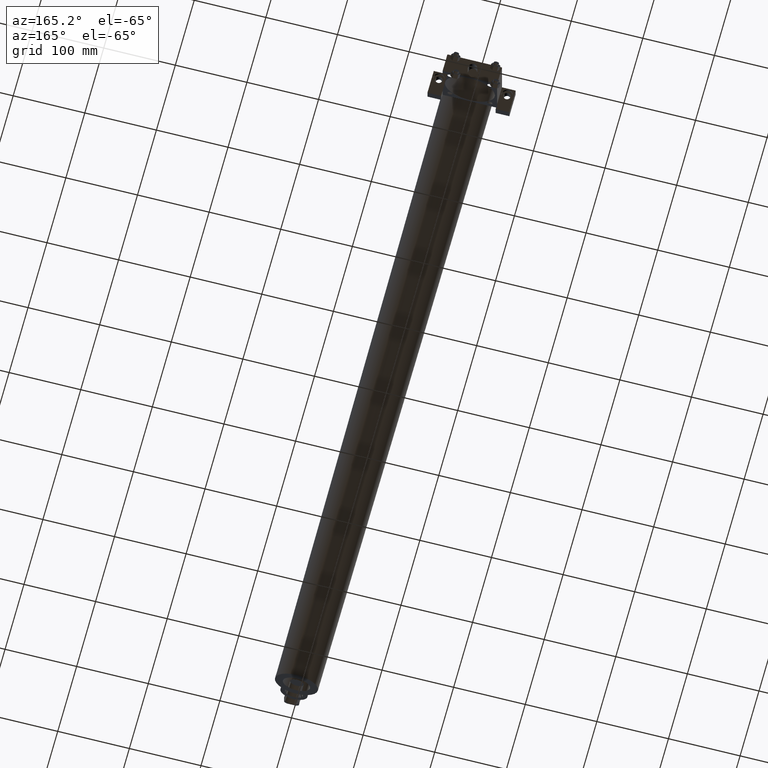
[diagram: clean part render]
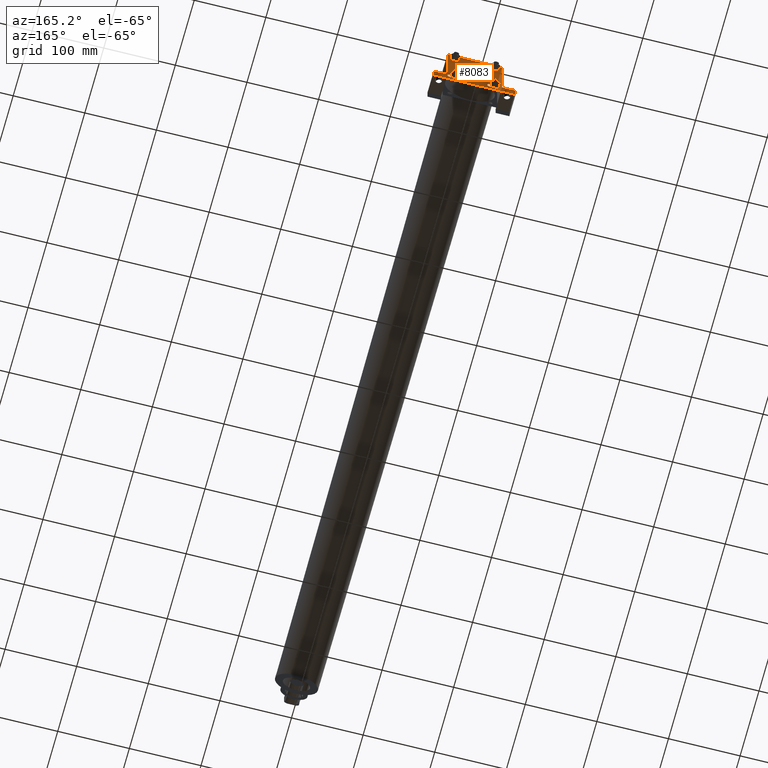
[diagram: same view with one face highlighted and labeled with its STEP entity id]
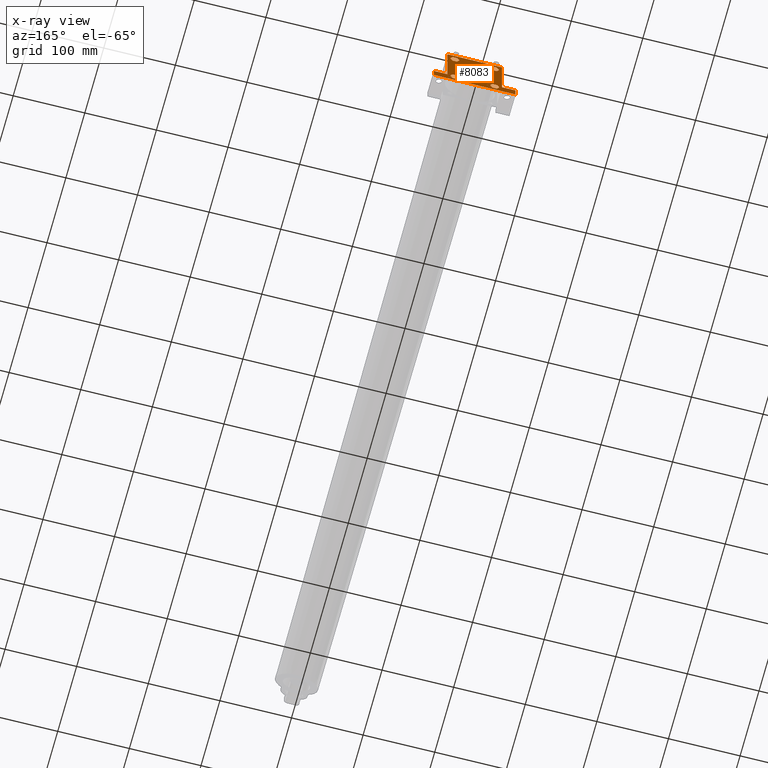
[diagram: x-ray of the same camera — body ghosted, the highlighted face saturated]
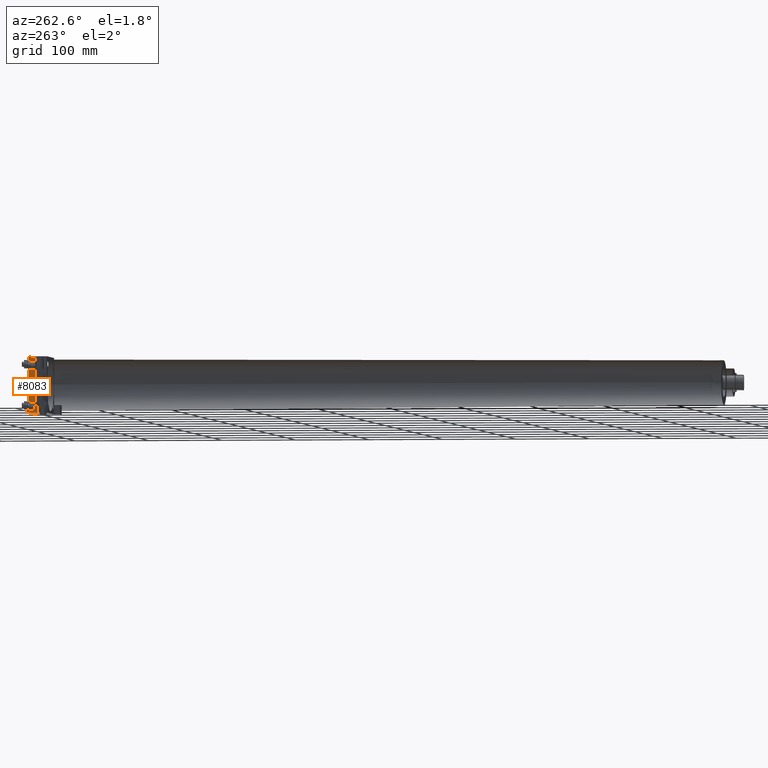
[diagram: same view with one face highlighted and labeled with its STEP entity id]
A machine part, auxiliary view. The second image highlights one B-rep face of the part: STEP entity #8083.
The next image is the same camera in x-ray: the body ghosted, the highlighted face saturated — about 0% of this face is hidden behind the body in this view.
A second angle (auxiliary view) of the same face is appended — the face is thin or edge-on in the first view.
In plain terms, the highlighted planar face has unit normal (0, -1, 0).
Its self-contained STEP definition (entity closure, byte-faithful):
#1557=VERTEX_POINT('',#1558);
#1558=CARTESIAN_POINT('',(-2.460509347E+001,9.683750000E+002,-2.225675426E+001));
#1559=EDGE_CURVE('',#1564,#1557,#1560,.T.);
#1560=LINE('',#1561,#1562);
#1561=CARTESIAN_POINT('',(-2.139719677E+001,9.683750000E+002,-2.781300000E+001));
#1562=VECTOR('',#1563,1.0E+000);
#1563=DIRECTION('',(-5.01129111258307E-001,0.0E+000,
   8.65372528943148E-001));
#1564=VERTEX_POINT('',#1565);
#1565=CARTESIAN_POINT('',(-2.139719677E+001,9.683750000E+002,-2.781300000E+001));
#1589=EDGE_CURVE('',#1594,#1564,#1590,.T.);
#1590=LINE('',#1591,#1592);
#1591=CARTESIAN_POINT('',(-2.460509347E+001,9.683750000E+002,-3.336924574E+001));
#1592=VECTOR('',#1593,1.0E+000);
#1593=DIRECTION('',(5.01129111258308E-001,0.0E+000,8.65372528943147E-001));
#1594=VERTEX_POINT('',#1595);
#1595=CARTESIAN_POINT('',(-2.460509347E+001,9.683750000E+002,-3.336924574E+001));
#1619=EDGE_CURVE('',#1624,#1594,#1620,.T.);
#1620=LINE('',#1621,#1622);
#1621=CARTESIAN_POINT('',(-3.102090653E+001,9.683750000E+002,-3.336924574E+001));
#1622=VECTOR('',#1623,1.0E+000);
#1623=DIRECTION('',(1.0E+000,0.0E+000,0.0E+000));
#1624=VERTEX_POINT('',#1625);
#1625=CARTESIAN_POINT('',(-3.102090653E+001,9.683750000E+002,-3.336924574E+001));
#1649=EDGE_CURVE('',#1654,#1624,#1650,.T.);
#1650=LINE('',#1651,#1652);
#1651=CARTESIAN_POINT('',(-3.422880323E+001,9.683750000E+002,-2.781300000E+001));
#1652=VECTOR('',#1653,1.0E+000);
#1653=DIRECTION('',(5.01129111258307E-001,0.0E+000,
   -8.65372528943148E-001));
#1654=VERTEX_POINT('',#1655);
#1655=CARTESIAN_POINT('',(-3.422880323E+001,9.683750000E+002,-2.781300000E+001));
#1679=EDGE_CURVE('',#1684,#1654,#1680,.T.);
#1680=LINE('',#1681,#1682);
#1681=CARTESIAN_POINT('',(-3.102090653E+001,9.683750000E+002,-2.225675426E+001));
#1682=VECTOR('',#1683,1.0E+000);
#1683=DIRECTION('',(-5.01129111258308E-001,0.0E+000,
   -8.65372528943147E-001));
#1684=VERTEX_POINT('',#1685);
#1685=CARTESIAN_POINT('',(-3.102090653E+001,9.683750000E+002,-2.225675426E+001));
#1707=EDGE_CURVE('',#1557,#1684,#1708,.T.);
#1708=LINE('',#1709,#1710);
#1709=CARTESIAN_POINT('',(-2.460509347E+001,9.683750000E+002,-2.225675426E+001));
#1710=VECTOR('',#1711,1.0E+000);
#1711=DIRECTION('',(-1.0E+000,0.0E+000,0.0E+000));
#1788=VERTEX_POINT('',#1789);
#1789=CARTESIAN_POINT('',(-3.102090653E+001,9.683750000E+002,2.225675426E+001));
#1790=EDGE_CURVE('',#1795,#1788,#1791,.T.);
#1791=LINE('',#1792,#1793);
#1792=CARTESIAN_POINT('',(-3.422880323E+001,9.683750000E+002,2.781300000E+001));
#1793=VECTOR('',#1794,1.0E+000);
#1794=DIRECTION('',(5.01129111258307E-001,0.0E+000,
   -8.65372528943148E-001));
#1795=VERTEX_POINT('',#1796);
#1796=CARTESIAN_POINT('',(-3.422880323E+001,9.683750000E+002,2.781300000E+001));
#1820=EDGE_CURVE('',#1825,#1795,#1821,.T.);
#1821=LINE('',#1822,#1823);
#1822=CARTESIAN_POINT('',(-3.102090653E+001,9.683750000E+002,3.336924574E+001));
#1823=VECTOR('',#1824,1.0E+000);
#1824=DIRECTION('',(-5.01129111258308E-001,0.0E+000,
   -8.65372528943147E-001));
#1825=VERTEX_POINT('',#1826);
#1826=CARTESIAN_POINT('',(-3.102090653E+001,9.683750000E+002,3.336924574E+001));
#1850=EDGE_CURVE('',#1855,#1825,#1851,.T.);
#1851=LINE('',#1852,#1853);
#1852=CARTESIAN_POINT('',(-2.460509347E+001,9.683750000E+002,3.336924574E+001));
#1853=VECTOR('',#1854,1.0E+000);
#1854=DIRECTION('',(-1.0E+000,0.0E+000,0.0E+000));
#1855=VERTEX_POINT('',#1856);
#1856=CARTESIAN_POINT('',(-2.460509347E+001,9.683750000E+002,3.336924574E+001));
#1880=EDGE_CURVE('',#1885,#1855,#1881,.T.);
#1881=LINE('',#1882,#1883);
#1882=CARTESIAN_POINT('',(-2.139719677E+001,9.683750000E+002,2.781300000E+001));
#1883=VECTOR('',#1884,1.0E+000);
#1884=DIRECTION('',(-5.01129111258307E-001,0.0E+000,
   8.65372528943148E-001));
#1885=VERTEX_POINT('',#1886);
#1886=CARTESIAN_POINT('',(-2.139719677E+001,9.683750000E+002,2.781300000E+001));
#1910=EDGE_CURVE('',#1915,#1885,#1911,.T.);
#1911=LINE('',#1912,#1913);
#1912=CARTESIAN_POINT('',(-2.460509347E+001,9.683750000E+002,2.225675426E+001));
#1913=VECTOR('',#1914,1.0E+000);
#1914=DIRECTION('',(5.01129111258308E-001,0.0E+000,8.65372528943147E-001));
#1915=VERTEX_POINT('',#1916);
#1916=CARTESIAN_POINT('',(-2.460509347E+001,9.683750000E+002,2.225675426E+001));
#1938=EDGE_CURVE('',#1788,#1915,#1939,.T.);
#1939=LINE('',#1940,#1941);
#1940=CARTESIAN_POINT('',(-3.102090653E+001,9.683750000E+002,2.225675426E+001));
#1941=VECTOR('',#1942,1.0E+000);
#1942=DIRECTION('',(1.0E+000,0.0E+000,0.0E+000));
#2019=VERTEX_POINT('',#2020);
#2020=CARTESIAN_POINT('',(2.460509347E+001,9.683750000E+002,2.225675426E+001));
#2021=EDGE_CURVE('',#2026,#2019,#2022,.T.);
#2022=LINE('',#2023,#2024);
#2023=CARTESIAN_POINT('',(2.139719677E+001,9.683750000E+002,2.781300000E+001));
#2024=VECTOR('',#2025,1.0E+000);
#2025=DIRECTION('',(5.01129111258307E-001,0.0E+000,
   -8.65372528943148E-001));
#2026=VERTEX_POINT('',#2027);
#2027=CARTESIAN_POINT('',(2.139719677E+001,9.683750000E+002,2.781300000E+001));
#2051=EDGE_CURVE('',#2056,#2026,#2052,.T.);
#2052=LINE('',#2053,#2054);
#2053=CARTESIAN_POINT('',(2.460509347E+001,9.683750000E+002,3.336924574E+001));
#2054=VECTOR('',#2055,1.0E+000);
#2055=DIRECTION('',(-5.01129111258308E-001,0.0E+000,
   -8.65372528943147E-001));
#2056=VERTEX_POINT('',#2057);
#2057=CARTESIAN_POINT('',(2.460509347E+001,9.683750000E+002,3.336924574E+001));
#2081=EDGE_CURVE('',#2086,#2056,#2082,.T.);
#2082=LINE('',#2083,#2084);
#2083=CARTESIAN_POINT('',(3.102090653E+001,9.683750000E+002,3.336924574E+001));
#2084=VECTOR('',#2085,1.0E+000);
#2085=DIRECTION('',(-1.0E+000,0.0E+000,0.0E+000));
#2086=VERTEX_POINT('',#2087);
#2087=CARTESIAN_POINT('',(3.102090653E+001,9.683750000E+002,3.336924574E+001));
#2111=EDGE_CURVE('',#2116,#2086,#2112,.T.);
#2112=LINE('',#2113,#2114);
#2113=CARTESIAN_POINT('',(3.422880323E+001,9.683750000E+002,2.781300000E+001));
#2114=VECTOR('',#2115,1.0E+000);
#2115=DIRECTION('',(-5.01129111258307E-001,0.0E+000,
   8.65372528943148E-001));
#2116=VERTEX_POINT('',#2117);
#2117=CARTESIAN_POINT('',(3.422880323E+001,9.683750000E+002,2.781300000E+001));
#2141=EDGE_CURVE('',#2146,#2116,#2142,.T.);
#2142=LINE('',#2143,#2144);
#2143=CARTESIAN_POINT('',(3.102090653E+001,9.683750000E+002,2.225675426E+001));
#2144=VECTOR('',#2145,1.0E+000);
#2145=DIRECTION('',(5.01129111258308E-001,0.0E+000,8.65372528943147E-001));
#2146=VERTEX_POINT('',#2147);
#2147=CARTESIAN_POINT('',(3.102090653E+001,9.683750000E+002,2.225675426E+001));
#2169=EDGE_CURVE('',#2019,#2146,#2170,.T.);
#2170=LINE('',#2171,#2172);
#2171=CARTESIAN_POINT('',(2.460509347E+001,9.683750000E+002,2.225675426E+001));
#2172=VECTOR('',#2173,1.0E+000);
#2173=DIRECTION('',(1.0E+000,0.0E+000,0.0E+000));
#2250=VERTEX_POINT('',#2251);
#2251=CARTESIAN_POINT('',(3.102090653E+001,9.683750000E+002,-2.225675426E+001));
#2252=EDGE_CURVE('',#2257,#2250,#2253,.T.);
#2253=LINE('',#2254,#2255);
#2254=CARTESIAN_POINT('',(3.422880323E+001,9.683750000E+002,-2.781300000E+001));
#2255=VECTOR('',#2256,1.0E+000);
#2256=DIRECTION('',(-5.01129111258307E-001,0.0E+000,
   8.65372528943148E-001));
#2257=VERTEX_POINT('',#2258);
#2258=CARTESIAN_POINT('',(3.422880323E+001,9.683750000E+002,-2.781300000E+001));
#2282=EDGE_CURVE('',#2287,#2257,#2283,.T.);
#2283=LINE('',#2284,#2285);
#2284=CARTESIAN_POINT('',(3.102090653E+001,9.683750000E+002,-3.336924574E+001));
#2285=VECTOR('',#2286,1.0E+000);
#2286=DIRECTION('',(5.01129111258308E-001,0.0E+000,8.65372528943147E-001));
#2287=VERTEX_POINT('',#2288);
#2288=CARTESIAN_POINT('',(3.102090653E+001,9.683750000E+002,-3.336924574E+001));
#2312=EDGE_CURVE('',#2317,#2287,#2313,.T.);
#2313=LINE('',#2314,#2315);
#2314=CARTESIAN_POINT('',(2.460509347E+001,9.683750000E+002,-3.336924574E+001));
#2315=VECTOR('',#2316,1.0E+000);
#2316=DIRECTION('',(1.0E+000,0.0E+000,0.0E+000));
#2317=VERTEX_POINT('',#2318);
#2318=CARTESIAN_POINT('',(2.460509347E+001,9.683750000E+002,-3.336924574E+001));
#2342=EDGE_CURVE('',#2347,#2317,#2343,.T.);
#2343=LINE('',#2344,#2345);
#2344=CARTESIAN_POINT('',(2.139719677E+001,9.683750000E+002,-2.781300000E+001));
#2345=VECTOR('',#2346,1.0E+000);
#2346=DIRECTION('',(5.01129111258307E-001,0.0E+000,
   -8.65372528943148E-001));
#2347=VERTEX_POINT('',#2348);
#2348=CARTESIAN_POINT('',(2.139719677E+001,9.683750000E+002,-2.781300000E+001));
#2372=EDGE_CURVE('',#2377,#2347,#2373,.T.);
#2373=LINE('',#2374,#2375);
#2374=CARTESIAN_POINT('',(2.460509347E+001,9.683750000E+002,-2.225675426E+001));
#2375=VECTOR('',#2376,1.0E+000);
#2376=DIRECTION('',(-5.01129111258308E-001,0.0E+000,
   -8.65372528943147E-001));
#2377=VERTEX_POINT('',#2378);
#2378=CARTESIAN_POINT('',(2.460509347E+001,9.683750000E+002,-2.225675426E+001));
#2400=EDGE_CURVE('',#2250,#2377,#2401,.T.);
#2401=LINE('',#2402,#2403);
#2402=CARTESIAN_POINT('',(3.102090653E+001,9.683750000E+002,-2.225675426E+001));
#2403=VECTOR('',#2404,1.0E+000);
#2404=DIRECTION('',(-1.0E+000,0.0E+000,0.0E+000));
#2844=VERTEX_POINT('',#2845);
#2845=CARTESIAN_POINT('',(-5.715000000E+001,9.683750000E+002,-3.810000000E+001));
#2846=EDGE_CURVE('',#2851,#2844,#2847,.T.);
#2847=LINE('',#2848,#2849);
#2848=CARTESIAN_POINT('',(3.810000000E+001,9.683750000E+002,-3.810000000E+001));
#2849=VECTOR('',#2850,1.0E+000);
#2850=DIRECTION('',(-1.0E+000,0.0E+000,0.0E+000));
#2851=VERTEX_POINT('',#2852);
#2852=CARTESIAN_POINT('',(5.715000000E+001,9.683750000E+002,-3.810000000E+001));
#2895=VERTEX_POINT('',#2897);
#2897=CARTESIAN_POINT('',(3.810000000E+001,9.683750000E+002,-2.540000000E+001));
#2914=VERTEX_POINT('',#2915);
#2915=CARTESIAN_POINT('',(5.715000000E+001,9.683750000E+002,-2.540000000E+001));
#2916=EDGE_CURVE('',#2914,#2895,#2917,.T.);
#2917=LINE('',#2918,#2919);
#2918=CARTESIAN_POINT('',(5.715000000E+001,9.683750000E+002,-2.540000000E+001));
#2919=VECTOR('',#2920,1.0E+000);
#2920=DIRECTION('',(-1.0E+000,0.0E+000,0.0E+000));
#2937=EDGE_CURVE('',#2914,#2851,#2938,.T.);
#2938=LINE('',#2939,#2940);
#2939=CARTESIAN_POINT('',(5.715000000E+001,9.683750000E+002,-2.540000000E+001));
#2940=VECTOR('',#2941,1.0E+000);
#2941=DIRECTION('',(0.0E+000,0.0E+000,-1.0E+000));
#2994=VERTEX_POINT('',#2996);
#2996=CARTESIAN_POINT('',(-3.810000000E+001,9.683750000E+002,-2.540000000E+001));
#2998=EDGE_CURVE('',#3003,#2994,#2999,.T.);
#2999=LINE('',#3000,#3001);
#3000=CARTESIAN_POINT('',(-5.715000000E+001,9.683750000E+002,-2.540000000E+001));
#3001=VECTOR('',#3002,1.0E+000);
#3002=DIRECTION('',(1.0E+000,0.0E+000,0.0E+000));
#3003=VERTEX_POINT('',#3004);
#3004=CARTESIAN_POINT('',(-5.715000000E+001,9.683750000E+002,-2.540000000E+001));
#3036=EDGE_CURVE('',#3003,#2844,#3037,.T.);
#3037=LINE('',#3038,#3039);
#3038=CARTESIAN_POINT('',(-5.715000000E+001,9.683750000E+002,-2.540000000E+001));
#3039=VECTOR('',#3040,1.0E+000);
#3040=DIRECTION('',(0.0E+000,0.0E+000,-1.0E+000));
#3078=FACE_OUTER_BOUND('',#3083,.T.);
#3079=FACE_BOUND('',#3084,.T.);
#3080=FACE_BOUND('',#3085,.T.);
#3081=FACE_BOUND('',#3086,.T.);
#3082=FACE_BOUND('',#3087,.T.);
#3083=EDGE_LOOP('',(#3088,#3089,#3090,#3091,#3092,#3093));
#3084=EDGE_LOOP('',(#3094,#3095,#3096,#3097,#3098,#3099));
#3085=EDGE_LOOP('',(#3100,#3101,#3102,#3103,#3104,#3105));
#3086=EDGE_LOOP('',(#3106,#3107,#3108,#3109,#3110,#3111));
#3087=EDGE_LOOP('',(#3112,#3113,#3114,#3115,#3116,#3117,#3118,#3119));
#3088=ORIENTED_EDGE('',*,*,#1559,.T.);
#3089=ORIENTED_EDGE('',*,*,#1707,.T.);
#3090=ORIENTED_EDGE('',*,*,#1679,.T.);
#3091=ORIENTED_EDGE('',*,*,#1649,.T.);
#3092=ORIENTED_EDGE('',*,*,#1619,.T.);
#3093=ORIENTED_EDGE('',*,*,#1589,.T.);
#3094=ORIENTED_EDGE('',*,*,#1790,.T.);
#3095=ORIENTED_EDGE('',*,*,#1938,.T.);
#3096=ORIENTED_EDGE('',*,*,#1910,.T.);
#3097=ORIENTED_EDGE('',*,*,#1880,.T.);
#3098=ORIENTED_EDGE('',*,*,#1850,.T.);
#3099=ORIENTED_EDGE('',*,*,#1820,.T.);
#3100=ORIENTED_EDGE('',*,*,#2021,.T.);
#3101=ORIENTED_EDGE('',*,*,#2169,.T.);
#3102=ORIENTED_EDGE('',*,*,#2141,.T.);
#3103=ORIENTED_EDGE('',*,*,#2111,.T.);
#3104=ORIENTED_EDGE('',*,*,#2081,.T.);
#3105=ORIENTED_EDGE('',*,*,#2051,.T.);
#3106=ORIENTED_EDGE('',*,*,#2252,.T.);
#3107=ORIENTED_EDGE('',*,*,#2400,.T.);
#3108=ORIENTED_EDGE('',*,*,#2372,.T.);
#3109=ORIENTED_EDGE('',*,*,#2342,.T.);
#3110=ORIENTED_EDGE('',*,*,#2312,.T.);
#3111=ORIENTED_EDGE('',*,*,#2282,.T.);
#3112=ORIENTED_EDGE('',*,*,#2937,.T.);
#3113=ORIENTED_EDGE('',*,*,#2846,.T.);
#3114=ORIENTED_EDGE('',*,*,#3036,.F.);
#3115=ORIENTED_EDGE('',*,*,#2998,.T.);
#3116=ORIENTED_EDGE('',*,*,#3120,.F.);
#3117=ORIENTED_EDGE('',*,*,#3127,.F.);
#3118=ORIENTED_EDGE('',*,*,#3134,.F.);
#3119=ORIENTED_EDGE('',*,*,#2916,.F.);
#3120=EDGE_CURVE('',#3125,#2994,#3121,.T.);
#3121=LINE('',#3122,#3123);
#3122=CARTESIAN_POINT('',(-3.810000000E+001,9.683750000E+002,3.810000000E+001));
#3123=VECTOR('',#3124,1.0E+000);
#3124=DIRECTION('',(0.0E+000,0.0E+000,-1.0E+000));
#3125=VERTEX_POINT('',#3126);
#3126=CARTESIAN_POINT('',(-3.810000000E+001,9.683750000E+002,3.810000000E+001));
#3127=EDGE_CURVE('',#3132,#3125,#3128,.T.);
#3128=LINE('',#3129,#3130);
#3129=CARTESIAN_POINT('',(3.810000000E+001,9.683750000E+002,3.810000000E+001));
#3130=VECTOR('',#3131,1.0E+000);
#3131=DIRECTION('',(-1.0E+000,0.0E+000,0.0E+000));
#3132=VERTEX_POINT('',#3133);
#3133=CARTESIAN_POINT('',(3.810000000E+001,9.683750000E+002,3.810000000E+001));
#3134=EDGE_CURVE('',#2895,#3132,#3135,.T.);
#3135=LINE('',#3136,#3137);
#3136=CARTESIAN_POINT('',(3.810000000E+001,9.683750000E+002,-3.810000000E+001));
#3137=VECTOR('',#3138,1.0E+000);
#3138=DIRECTION('',(0.0E+000,0.0E+000,1.0E+000));
#3139=PLANE('',#3140);
#3140=AXIS2_PLACEMENT_3D('',#3141,#3142,#3143);
#3141=CARTESIAN_POINT('',(3.810000000E+001,9.683750000E+002,-3.810000000E+001));
#3142=DIRECTION('',(0.0E+000,-1.0E+000,0.0E+000));
#3143=DIRECTION('',(0.0E+000,0.0E+000,-1.0E+000));
#8083=ADVANCED_FACE('',(#3078,#3079,#3080,#3081,#3082),#3139,.F.);